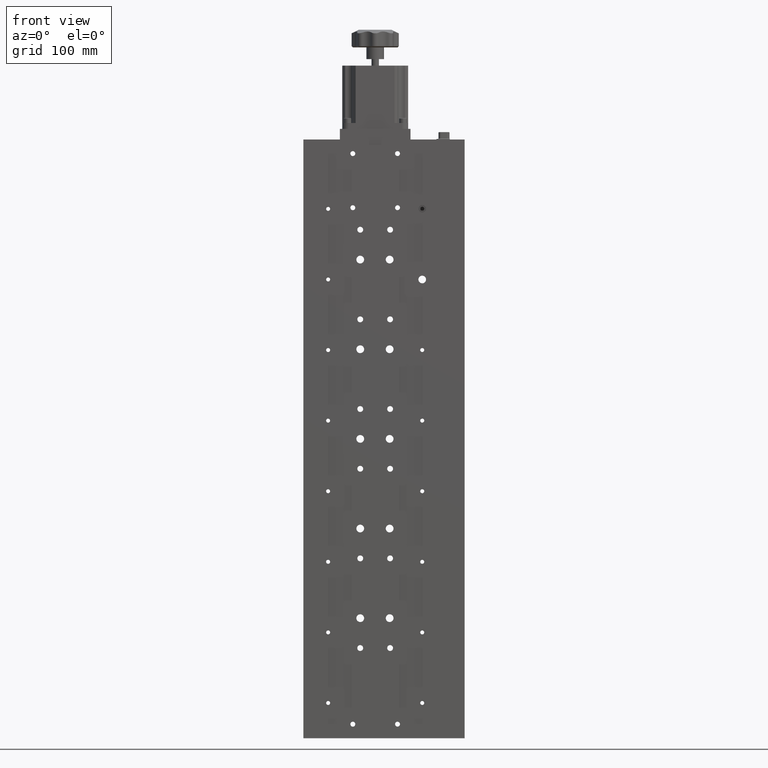
[diagram: clean part render]
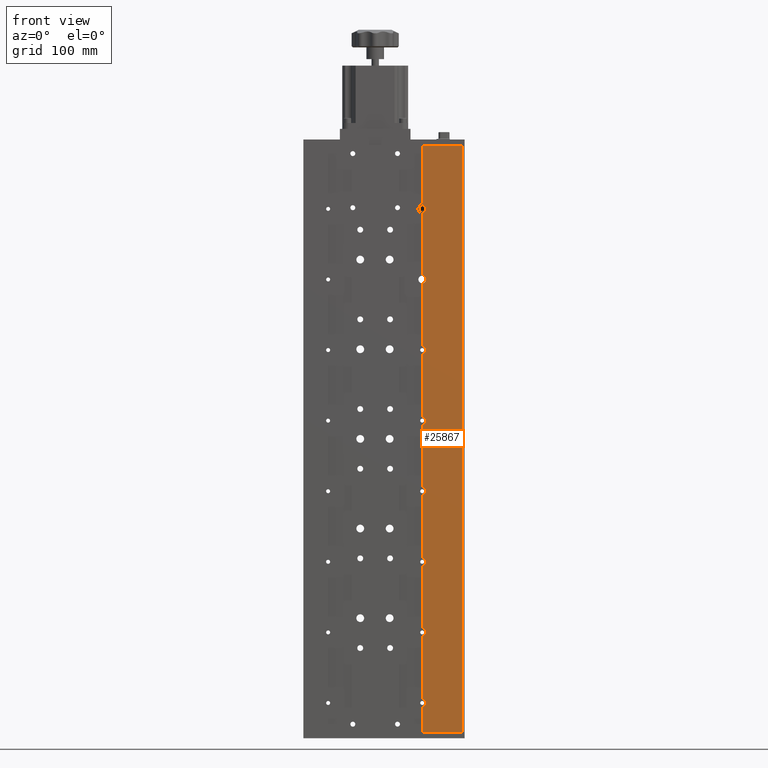
[diagram: same view with one face highlighted and labeled with its STEP entity id]
A machine part, front view. The second image highlights one B-rep face of the part: STEP entity #25867.
In plain terms, the highlighted planar face has unit normal (-0, 1, 0).
Its self-contained STEP definition (entity closure, byte-faithful):
#109 = AXIS2_PLACEMENT_3D ( 'NONE', #713, #23553, #4005 ) ;
#342 = CARTESIAN_POINT ( 'NONE',  ( 29.38919164395998600, -10.41765062064796000, 15.50000000000001400 ) ) ;
#470 = LINE ( 'NONE', #23780, #34159 ) ;
#697 = DIRECTION ( 'NONE',  ( 0.0000000000000000000, 0.0000000000000000000, 1.000000000000000000 ) ) ;
#703 = CIRCLE ( 'NONE', #25841, 3.250000000000002700 ) ;
#713 = CARTESIAN_POINT ( 'NONE',  ( 29.38919164395998600, -10.41765062064796000, -104.4999999999999900 ) ) ;
#790 = VECTOR ( 'NONE', #17582, 1000.000000000000000 ) ;
#1163 = CARTESIAN_POINT ( 'NONE',  ( 29.38919164396006100, -10.41765062064795800, -221.2499999999999400 ) ) ;
#1348 = CARTESIAN_POINT ( 'NONE',  ( 29.38919164395998600, -10.41765062064796000, -44.49999999999999300 ) ) ;
#1455 = AXIS2_PLACEMENT_3D ( 'NONE', #33884, #14409, #37172 ) ;
#1630 = VERTEX_POINT ( 'NONE', #8356 ) ;
#1774 = DIRECTION ( 'NONE',  ( 0.0000000000000000000, 0.0000000000000000000, 1.000000000000000000 ) ) ;
#2036 = CARTESIAN_POINT ( 'NONE',  ( 63.38919164396007500, -10.41765062064795800, 249.5000000000000300 ) ) ;
#2257 = LINE ( 'NONE', #11563, #27243 ) ;
#2409 = DIRECTION ( 'NONE',  ( 0.0000000000000000000, 0.0000000000000000000, -1.000000000000000000 ) ) ;
#2539 = DIRECTION ( 'NONE',  ( 0.0000000000000000000, 0.0000000000000000000, -1.000000000000000000 ) ) ;
#2647 = EDGE_CURVE ( 'NONE', #34710, #6524, #12136, .T. ) ;
#2743 = ORIENTED_EDGE ( 'NONE', *, *, #33251, .F. ) ;
#3261 = VERTEX_POINT ( 'NONE', #2036 ) ;
#3544 = VECTOR ( 'NONE', #28609, 1000.000000000000000 ) ;
#3639 = DIRECTION ( 'NONE',  ( 0.0000000000000000000, 0.0000000000000000000, -1.000000000000000000 ) ) ;
#3940 = CARTESIAN_POINT ( 'NONE',  ( 29.38919164396006100, -10.41765062064796000, -249.4999999999999400 ) ) ;
#4005 = DIRECTION ( 'NONE',  ( 0.0000000000000000000, 0.0000000000000000000, -1.000000000000000000 ) ) ;
#4063 = CARTESIAN_POINT ( 'NONE',  ( 29.38919164396006100, -10.41765062064796000, -47.74999999999999300 ) ) ;
#4518 = EDGE_CURVE ( 'NONE', #17330, #18590, #17912, .T. ) ;
#4561 = DIRECTION ( 'NONE',  ( 3.689503073101735200E-032, -1.000000000000000000, 0.0000000000000000000 ) ) ;
#4644 = DIRECTION ( 'NONE',  ( 0.0000000000000000000, 0.0000000000000000000, -1.000000000000000000 ) ) ;
#5230 = ORIENTED_EDGE ( 'NONE', *, *, #8670, .T. ) ;
#5277 = ORIENTED_EDGE ( 'NONE', *, *, #40090, .F. ) ;
#5370 = VERTEX_POINT ( 'NONE', #37584 ) ;
#5415 = CARTESIAN_POINT ( 'NONE',  ( -74.98580835603992500, -10.41765062064796000, 249.5000000000000600 ) ) ;
#6040 = AXIS2_PLACEMENT_3D ( 'NONE', #342, #23192, #3639 ) ;
#6052 = VERTEX_POINT ( 'NONE', #21467 ) ;
#6139 = CARTESIAN_POINT ( 'NONE',  ( 29.38919164396006100, -10.41765062064796000, 198.7500000000000300 ) ) ;
#6524 = VERTEX_POINT ( 'NONE', #12742 ) ;
#6870 = DIRECTION ( 'NONE',  ( 0.0000000000000000000, 0.0000000000000000000, 1.000000000000000000 ) ) ;
#7116 = CARTESIAN_POINT ( 'NONE',  ( 63.38919164396002500, -10.41765062064795800, -249.4999999999999700 ) ) ;
#7364 = ORIENTED_EDGE ( 'NONE', *, *, #30487, .F. ) ;
#7417 = EDGE_CURVE ( 'NONE', #20038, #13424, #8466, .T. ) ;
#7629 = LINE ( 'NONE', #28750, #3544 ) ;
#7929 = VERTEX_POINT ( 'NONE', #31974 ) ;
#8356 = CARTESIAN_POINT ( 'NONE',  ( 29.38919164396006100, -10.41765062064796000, 72.25000000000001400 ) ) ;
#8466 = CIRCLE ( 'NONE', #18113, 3.250000000000002700 ) ;
#8670 = EDGE_CURVE ( 'NONE', #18820, #3261, #36237, .T. ) ;
#8848 = VERTEX_POINT ( 'NONE', #4063 ) ;
#8940 = EDGE_CURVE ( 'NONE', #8848, #17330, #12260, .T. ) ;
#9205 = VECTOR ( 'NONE', #15410, 1000.000000000000000 ) ;
#9243 = VERTEX_POINT ( 'NONE', #28882 ) ;
#9375 = ORIENTED_EDGE ( 'NONE', *, *, #13487, .F. ) ;
#9519 = VERTEX_POINT ( 'NONE', #1163 ) ;
#9873 = LINE ( 'NONE', #21328, #27203 ) ;
#9922 = CARTESIAN_POINT ( 'NONE',  ( 29.38919164396006100, -10.41765062064796000, 249.5000000000000600 ) ) ;
#10274 = VECTOR ( 'NONE', #697, 1000.000000000000000 ) ;
#11181 = ORIENTED_EDGE ( 'NONE', *, *, #4518, .F. ) ;
#11330 = CARTESIAN_POINT ( 'NONE',  ( 29.38919164396006100, -10.41765062064796000, 78.75000000000001400 ) ) ;
#11563 = CARTESIAN_POINT ( 'NONE',  ( -74.98580835603992500, -10.41765062064796000, -249.4999999999999400 ) ) ;
#12136 = LINE ( 'NONE', #9922, #20820 ) ;
#12260 = CIRCLE ( 'NONE', #30419, 3.250000000000002700 ) ;
#12742 = CARTESIAN_POINT ( 'NONE',  ( 29.38919164396006800, -10.41765062064796000, 249.5000000000000600 ) ) ;
#13355 = LINE ( 'NONE', #14017, #38318 ) ;
#13424 = VERTEX_POINT ( 'NONE', #35897 ) ;
#13487 = EDGE_CURVE ( 'NONE', #1630, #36221, #17335, .T. ) ;
#13953 = DIRECTION ( 'NONE',  ( -3.029454718961630700E-018, 1.000000000000000000, 0.0000000000000000000 ) ) ;
#14017 = CARTESIAN_POINT ( 'NONE',  ( 29.38919164396006100, -10.41765062064796000, 249.5000000000000600 ) ) ;
#14094 = DIRECTION ( 'NONE',  ( 0.0000000000000000000, 0.0000000000000000000, 1.000000000000000000 ) ) ;
#14195 = EDGE_CURVE ( 'NONE', #6052, #8848, #35509, .T. ) ;
#14251 = LINE ( 'NONE', #5415, #21937 ) ;
#14409 = DIRECTION ( 'NONE',  ( 3.689503073101735200E-032, -1.000000000000000000, 0.0000000000000000000 ) ) ;
#15410 = DIRECTION ( 'NONE',  ( 0.0000000000000000000, 0.0000000000000000000, 1.000000000000000000 ) ) ;
#15548 = AXIS2_PLACEMENT_3D ( 'NONE', #33450, #13953, #36727 ) ;
#15598 = EDGE_CURVE ( 'NONE', #32434, #6052, #30280, .T. ) ;
#17330 = VERTEX_POINT ( 'NONE', #26961 ) ;
#17335 = CIRCLE ( 'NONE', #1455, 3.250000000000002700 ) ;
#17350 = EDGE_CURVE ( 'NONE', #5370, #34710, #23547, .T. ) ;
#17582 = DIRECTION ( 'NONE',  ( 0.0000000000000000000, 0.0000000000000000000, 1.000000000000000000 ) ) ;
#17912 = LINE ( 'NONE', #21827, #9205 ) ;
#18113 = AXIS2_PLACEMENT_3D ( 'NONE', #41565, #22114, #2539 ) ;
#18161 = DIRECTION ( 'NONE',  ( 3.689503073101735200E-032, -1.000000000000000000, 0.0000000000000000000 ) ) ;
#18590 = VERTEX_POINT ( 'NONE', #19446 ) ;
#18650 = AXIS2_PLACEMENT_3D ( 'NONE', #41433, #21966, #2409 ) ;
#18820 = VERTEX_POINT ( 'NONE', #20830 ) ;
#19446 = CARTESIAN_POINT ( 'NONE',  ( 29.38919164396006100, -10.41765062064796000, 12.25000000000001100 ) ) ;
#19807 = VERTEX_POINT ( 'NONE', #20751 ) ;
#20005 = CARTESIAN_POINT ( 'NONE',  ( 29.38919164396006100, -10.41765062064796000, 249.5000000000000600 ) ) ;
#20006 = VECTOR ( 'NONE', #39488, 1000.000000000000000 ) ;
#20038 = VERTEX_POINT ( 'NONE', #28719 ) ;
#20155 = ORIENTED_EDGE ( 'NONE', *, *, #15598, .F. ) ;
#20751 = CARTESIAN_POINT ( 'NONE',  ( 29.38919164396006100, -10.41765062064796000, -161.2499999999999400 ) ) ;
#20820 = VECTOR ( 'NONE', #29443, 1000.000000000000000 ) ;
#20830 = CARTESIAN_POINT ( 'NONE',  ( 63.38919164396006100, -10.41765062064796000, -249.4999999999999700 ) ) ;
#20854 = ORIENTED_EDGE ( 'NONE', *, *, #41019, .F. ) ;
#21328 = CARTESIAN_POINT ( 'NONE',  ( 29.38919164396006100, -10.41765062064796000, 249.5000000000000600 ) ) ;
#21467 = CARTESIAN_POINT ( 'NONE',  ( 29.38919164396006100, -10.41765062064796000, -101.2499999999999900 ) ) ;
#21827 = CARTESIAN_POINT ( 'NONE',  ( 29.38919164396006100, -10.41765062064796000, 249.5000000000000600 ) ) ;
#21937 = VECTOR ( 'NONE', #31481, 1000.000000000000000 ) ;
#21966 = DIRECTION ( 'NONE',  ( 3.689503073101735200E-032, -1.000000000000000000, 0.0000000000000000000 ) ) ;
#22114 = DIRECTION ( 'NONE',  ( 3.689503073101735200E-032, -1.000000000000000000, 0.0000000000000000000 ) ) ;
#22167 = FACE_OUTER_BOUND ( 'NONE', #41455, .T. ) ;
#22376 = LINE ( 'NONE', #39570, #29985 ) ;
#23192 = DIRECTION ( 'NONE',  ( 3.689503073101735200E-032, -1.000000000000000000, 0.0000000000000000000 ) ) ;
#23355 = DIRECTION ( 'NONE',  ( 0.0000000000000000000, 0.0000000000000000000, 1.000000000000000000 ) ) ;
#23547 = CIRCLE ( 'NONE', #30538, 3.250000000000002700 ) ;
#23553 = DIRECTION ( 'NONE',  ( 3.689503073101735200E-032, -1.000000000000000000, 0.0000000000000000000 ) ) ;
#23780 = CARTESIAN_POINT ( 'NONE',  ( 29.38919164396006100, -10.41765062064796000, 249.5000000000000600 ) ) ;
#24113 = CARTESIAN_POINT ( 'NONE',  ( 29.38919164395998600, -10.41765062064796000, -164.4999999999999400 ) ) ;
#24185 = DIRECTION ( 'NONE',  ( 3.689503073101735200E-032, -1.000000000000000000, 0.0000000000000000000 ) ) ;
#24473 = ORIENTED_EDGE ( 'NONE', *, *, #33320, .F. ) ;
#24876 = ORIENTED_EDGE ( 'NONE', *, *, #27111, .T. ) ;
#25841 = AXIS2_PLACEMENT_3D ( 'NONE', #24113, #4561, #27377 ) ;
#25867 = ADVANCED_FACE ( 'NONE', ( #22167 ), #33303, .F. ) ;
#26368 = ORIENTED_EDGE ( 'NONE', *, *, #8940, .F. ) ;
#26961 = CARTESIAN_POINT ( 'NONE',  ( 29.38919164396006100, -10.41765062064796000, -41.24999999999998600 ) ) ;
#27111 = EDGE_CURVE ( 'NONE', #3261, #6524, #14251, .T. ) ;
#27203 = VECTOR ( 'NONE', #1774, 1000.000000000000000 ) ;
#27243 = VECTOR ( 'NONE', #34343, 1000.000000000000000 ) ;
#27377 = DIRECTION ( 'NONE',  ( 0.0000000000000000000, 0.0000000000000000000, -1.000000000000000000 ) ) ;
#27378 = EDGE_CURVE ( 'NONE', #19807, #32434, #22376, .T. ) ;
#27990 = ORIENTED_EDGE ( 'NONE', *, *, #14195, .F. ) ;
#28609 = DIRECTION ( 'NONE',  ( 0.0000000000000000000, 0.0000000000000000000, 1.000000000000000000 ) ) ;
#28699 = LINE ( 'NONE', #20005, #20006 ) ;
#28719 = CARTESIAN_POINT ( 'NONE',  ( 29.38919164396006100, -10.41765062064796000, 132.2500000000000300 ) ) ;
#28750 = CARTESIAN_POINT ( 'NONE',  ( 29.38919164396006100, -10.41765062064796000, 249.5000000000000600 ) ) ;
#28882 = CARTESIAN_POINT ( 'NONE',  ( 29.38919164395998600, -10.41765062064795800, -227.7499999999999400 ) ) ;
#29322 = CARTESIAN_POINT ( 'NONE',  ( 29.38919164396006100, -10.41765062064796000, -107.7499999999999900 ) ) ;
#29443 = DIRECTION ( 'NONE',  ( 0.0000000000000000000, 0.0000000000000000000, 1.000000000000000000 ) ) ;
#29985 = VECTOR ( 'NONE', #23355, 1000.000000000000000 ) ;
#30280 = CIRCLE ( 'NONE', #109, 3.250000000000002700 ) ;
#30344 = ORIENTED_EDGE ( 'NONE', *, *, #37454, .F. ) ;
#30419 = AXIS2_PLACEMENT_3D ( 'NONE', #1348, #24185, #4644 ) ;
#30487 = EDGE_CURVE ( 'NONE', #9243, #9519, #32806, .T. ) ;
#30538 = AXIS2_PLACEMENT_3D ( 'NONE', #37626, #18161, #40907 ) ;
#30677 = EDGE_CURVE ( 'NONE', #18590, #7929, #39972, .T. ) ;
#30958 = EDGE_CURVE ( 'NONE', #7929, #1630, #9873, .T. ) ;
#31281 = EDGE_CURVE ( 'NONE', #13424, #5370, #28699, .T. ) ;
#31481 = DIRECTION ( 'NONE',  ( -1.000000000000000000, -3.029454718961630700E-018, 0.0000000000000000000 ) ) ;
#31974 = CARTESIAN_POINT ( 'NONE',  ( 29.38919164396006100, -10.41765062064796000, 18.75000000000001800 ) ) ;
#32434 = VERTEX_POINT ( 'NONE', #29322 ) ;
#32806 = CIRCLE ( 'NONE', #18650, 3.250000000000002700 ) ;
#33251 = EDGE_CURVE ( 'NONE', #33365, #19807, #703, .T. ) ;
#33303 = PLANE ( 'NONE',  #15548 ) ;
#33320 = EDGE_CURVE ( 'NONE', #18820, #33666, #2257, .T. ) ;
#33365 = VERTEX_POINT ( 'NONE', #40885 ) ;
#33450 = CARTESIAN_POINT ( 'NONE',  ( -74.98580835603992500, -10.41765062064796000, -249.4999999999999400 ) ) ;
#33666 = VERTEX_POINT ( 'NONE', #3940 ) ;
#33884 = CARTESIAN_POINT ( 'NONE',  ( 29.38919164395998600, -10.41765062064796000, 75.50000000000001400 ) ) ;
#34121 = ORIENTED_EDGE ( 'NONE', *, *, #2647, .F. ) ;
#34159 = VECTOR ( 'NONE', #14094, 1000.000000000000000 ) ;
#34343 = DIRECTION ( 'NONE',  ( -1.000000000000000000, -3.029454718961630700E-018, 0.0000000000000000000 ) ) ;
#34710 = VERTEX_POINT ( 'NONE', #6139 ) ;
#35188 = ORIENTED_EDGE ( 'NONE', *, *, #17350, .F. ) ;
#35221 = ORIENTED_EDGE ( 'NONE', *, *, #27378, .F. ) ;
#35509 = LINE ( 'NONE', #40333, #790 ) ;
#35897 = CARTESIAN_POINT ( 'NONE',  ( 29.38919164396006100, -10.41765062064796000, 138.7500000000000300 ) ) ;
#36221 = VERTEX_POINT ( 'NONE', #11330 ) ;
#36237 = LINE ( 'NONE', #7116, #10274 ) ;
#36495 = ORIENTED_EDGE ( 'NONE', *, *, #31281, .F. ) ;
#36727 = DIRECTION ( 'NONE',  ( -1.000000000000000000, -3.029454718961630700E-018, 0.0000000000000000000 ) ) ;
#36959 = ORIENTED_EDGE ( 'NONE', *, *, #7417, .F. ) ;
#37172 = DIRECTION ( 'NONE',  ( 0.0000000000000000000, 0.0000000000000000000, -1.000000000000000000 ) ) ;
#37454 = EDGE_CURVE ( 'NONE', #36221, #20038, #7629, .T. ) ;
#37584 = CARTESIAN_POINT ( 'NONE',  ( 29.38919164396006100, -10.41765062064796000, 192.2500000000000300 ) ) ;
#37626 = CARTESIAN_POINT ( 'NONE',  ( 29.38919164395998600, -10.41765062064796000, 195.5000000000000300 ) ) ;
#38318 = VECTOR ( 'NONE', #6870, 1000.000000000000000 ) ;
#38628 = ORIENTED_EDGE ( 'NONE', *, *, #30958, .F. ) ;
#39488 = DIRECTION ( 'NONE',  ( 0.0000000000000000000, 0.0000000000000000000, 1.000000000000000000 ) ) ;
#39570 = CARTESIAN_POINT ( 'NONE',  ( 29.38919164396006100, -10.41765062064796000, 249.5000000000000600 ) ) ;
#39779 = ORIENTED_EDGE ( 'NONE', *, *, #30677, .F. ) ;
#39972 = CIRCLE ( 'NONE', #6040, 3.250000000000002700 ) ;
#40090 = EDGE_CURVE ( 'NONE', #33666, #9243, #470, .T. ) ;
#40333 = CARTESIAN_POINT ( 'NONE',  ( 29.38919164396006100, -10.41765062064796000, 249.5000000000000600 ) ) ;
#40885 = CARTESIAN_POINT ( 'NONE',  ( 29.38919164395998600, -10.41765062064796000, -167.7499999999999400 ) ) ;
#40907 = DIRECTION ( 'NONE',  ( 0.0000000000000000000, 0.0000000000000000000, -1.000000000000000000 ) ) ;
#41019 = EDGE_CURVE ( 'NONE', #9519, #33365, #13355, .T. ) ;
#41433 = CARTESIAN_POINT ( 'NONE',  ( 29.38919164395998600, -10.41765062064796000, -224.4999999999999400 ) ) ;
#41455 = EDGE_LOOP ( 'NONE', ( #35188, #36495, #36959, #30344, #9375, #38628, #39779, #11181, #26368, #27990, #20155, #35221, #2743, #20854, #7364, #5277, #24473, #5230, #24876, #34121 ) ) ;
#41565 = CARTESIAN_POINT ( 'NONE',  ( 29.38919164395998600, -10.41765062064796000, 135.5000000000000300 ) ) ;